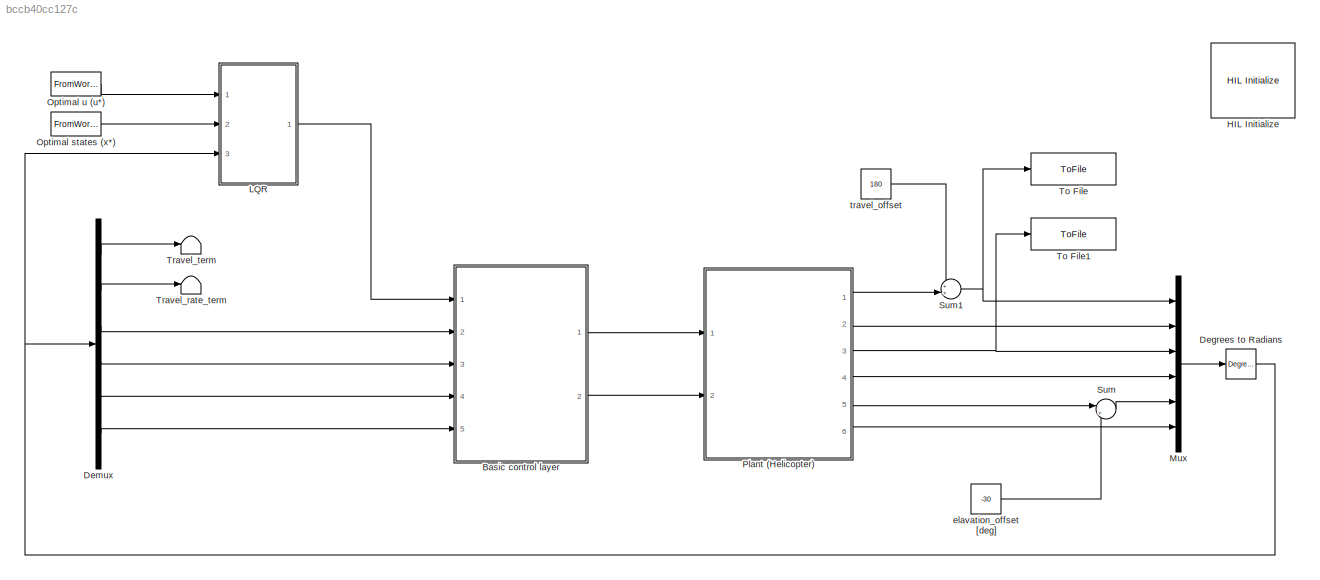
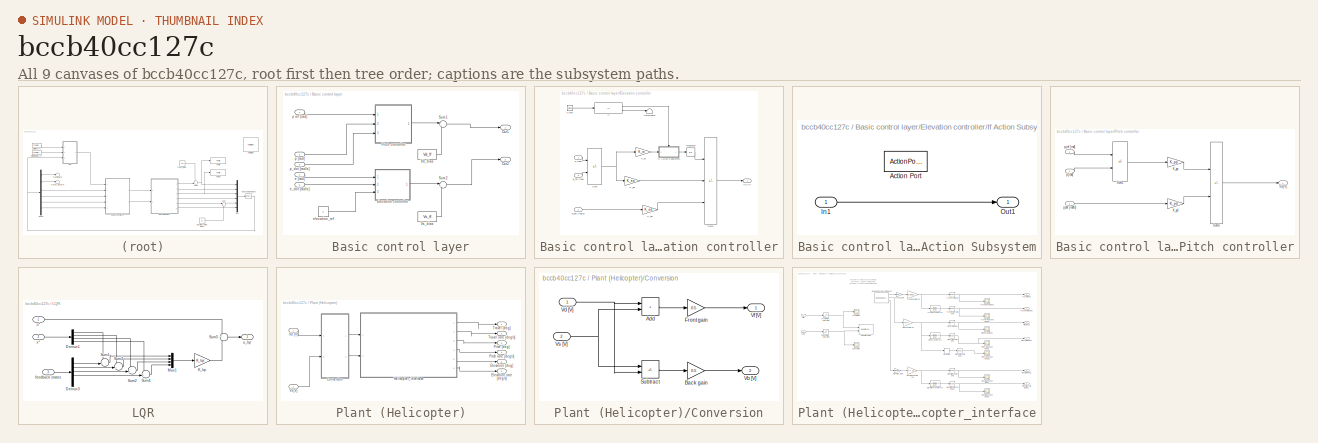
[diagram: thumbnail index - all 9 canvases of the model, root first then tree order]
MODEL slx_bccb40cc127c
KIND model
CONFIG AbsTol = auto
CONFIG EnableMultiTasking = on
CONFIG FixedStep = 0.002
CONFIG MaxStep = auto
CONFIG MinStep = auto
CONFIG PostLoadFcn = qc_set_target_type(getConfigSet(bdroot, 'QUARC Default Target Configuration'));
CONFIG RelTol = 1e-3
CONFIG SampleTimeConstraint = Unconstrained
CONFIG SolverName = ode1
CONFIG StartTime = 0.0
CONFIG StopTime = inf
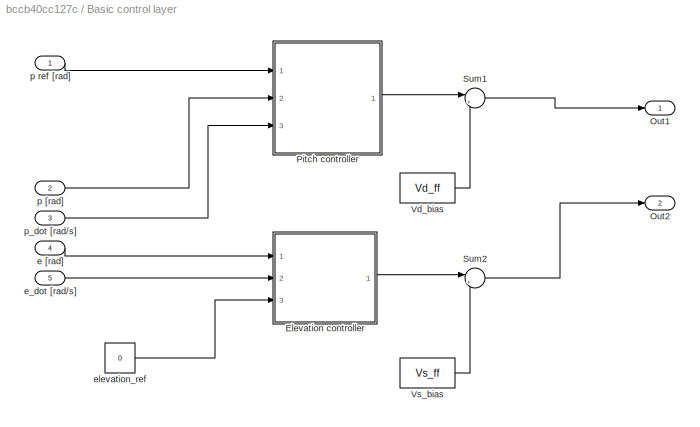
BLOCK [SubSystem] Basic control layer
  Ports = [5, 2]
  RequestExecContextInheritance = off
BLOCK [SubSystem] Basic control layer/Elevation controller
  Ports = [3, 1]
  RequestExecContextInheritance = off
BLOCK [Clock] Basic control layer/Elevation controller/Clock
BLOCK [If] Basic control layer/Elevation controller/If
  IfExpression = u1 >=2
  Ports = [1, 2]
BLOCK [SubSystem] Basic control layer/Elevation controller/If Action Subsystem
  Ports = [1, 1, 0, 0, 0, 0, 0, 1]
  RequestExecContextInheritance = off
  TreatAsAtomicUnit = on
BLOCK [ActionPort] Basic control layer/Elevation controller/If Action Subsystem/Action Port
  ActionPortLabel = if(u1 >=2)
BLOCK [Inport] Basic control layer/Elevation controller/If Action Subsystem/In1
BLOCK [Outport] Basic control layer/Elevation controller/If Action Subsystem/Out1
BLOCK [Integrator] Basic control layer/Elevation controller/Integrator
  LimitOutput = on
  Ports = [1, 1]
BLOCK [Gain] Basic control layer/Elevation controller/K_ed
  Gain = K_ed
  OutDataTypeStr = Inherit: Same as input
  ParamDataTypeStr = Inherit: Same as input
  SaturateOnIntegerOverflow = on
BLOCK [Gain] Basic control layer/Elevation controller/K_ei
  Gain = K_ei
  OutDataTypeStr = Inherit: Same as input
  ParamDataTypeStr = Inherit: Same as input
  SaturateOnIntegerOverflow = on
BLOCK [Gain] Basic control layer/Elevation controller/K_ep
  Gain = K_ep
  OutDataTypeStr = Inherit: Same as input
  ParamDataTypeStr = Inherit: Same as input
  SaturateOnIntegerOverflow = on
BLOCK [Sum] Basic control layer/Elevation controller/Sum
  IconShape = rectangular
  InputSameDT = on
  Inputs = -+
  OutDataTypeStr = Inherit: Same as first input
  Ports = [2, 1]
  SaturateOnIntegerOverflow = on
BLOCK [Sum] Basic control layer/Elevation controller/Sum1
  IconShape = rectangular
  InputSameDT = on
  Inputs = ++-
  OutDataTypeStr = Inherit: Same as first input
  Ports = [3, 1]
  SaturateOnIntegerOverflow = on
BLOCK [Terminator] Basic control layer/Elevation controller/Terminator
BLOCK [Outport] Basic control layer/Elevation controller/Vs [V]
  InitialOutput = 0
BLOCK [Inport] Basic control layer/Elevation controller/e [rad]
BLOCK [Inport] Basic control layer/Elevation controller/e_dot [rad//s]
  Port = 2
BLOCK [Inport] Basic control layer/Elevation controller/e_ref [rad]
  Port = 3
BLOCK [Outport] Basic control layer/Out1
BLOCK [Outport] Basic control layer/Out2
  Port = 2
BLOCK [SubSystem] Basic control layer/Pitch controller
  Ports = [3, 1]
  RequestExecContextInheritance = off
BLOCK [Gain] Basic control layer/Pitch controller/K_pd
  Gain = K_pd
  OutDataTypeStr = Inherit: Same as input
  ParamDataTypeStr = Inherit: Same as input
  SaturateOnIntegerOverflow = on
BLOCK [Gain] Basic control layer/Pitch controller/K_pp
  Gain = K_pp
  OutDataTypeStr = Inherit: Same as input
  ParamDataTypeStr = Inherit: Same as input
  SaturateOnIntegerOverflow = on
BLOCK [Sum] Basic control layer/Pitch controller/Sum2
  IconShape = rectangular
  InputSameDT = on
  Inputs = +-
  OutDataTypeStr = Inherit: Same as first input
  Ports = [2, 1]
  SaturateOnIntegerOverflow = on
BLOCK [Sum] Basic control layer/Pitch controller/Sum3
  IconShape = rectangular
  InputSameDT = on
  Inputs = +-
  OutDataTypeStr = Inherit: Same as first input
  Ports = [2, 1]
  SaturateOnIntegerOverflow = on
BLOCK [Outport] Basic control layer/Pitch controller/Vd [V]
  InitialOutput = 0
BLOCK [Inport] Basic control layer/Pitch controller/p [rad]
  Port = 2
BLOCK [Inport] Basic control layer/Pitch controller/p_dot [rad//s]
  Port = 3
BLOCK [Inport] Basic control layer/Pitch controller/p_ref [rad]
BLOCK [Sum] Basic control layer/Sum1
  Inputs = |++
  Ports = [2, 1]
BLOCK [Sum] Basic control layer/Sum2
  Inputs = |++
  Ports = [2, 1]
BLOCK [Constant] Basic control layer/Vd_bias
  Value = Vd_ff
BLOCK [Constant] Basic control layer/Vs_bias
  Value = Vs_ff
BLOCK [Inport] Basic control layer/e [rad]
  Port = 4
BLOCK [Inport] Basic control layer/e_dot [rad//s]
  Port = 5
BLOCK [Constant] Basic control layer/elevation_ref
  Value = 0
BLOCK [Inport] Basic control layer/p [rad]
  Port = 2
BLOCK [Inport] Basic control layer/p ref [rad]
BLOCK [Inport] Basic control layer/p_dot [rad//s]
  Port = 3
BLOCK [Reference] Degrees to Radians  REF=simulink_extras/Transformations/Degrees to
Radians
  Ports = [1, 1]
  SourceBlock = simulink_extras/Transformations/Degrees to\nRadians
  SourceProductBaseCode = SL
  SourceType = DegreesToRadians
BLOCK [Demux] Demux
  Outputs = 6
  Ports = [1, 6]
BLOCK [Reference] HIL Initialize  REF=quarc_library/Data Acquisition/Generic/Configuration/HIL Initialize
  AttributesFormatString = %<object_name> (%<board_type>-%<board_number>)
  Ports = []
  Priority = -99
  SourceBlock = quarc_library/Data Acquisition/Generic/Configuration/HIL Initialize
  SourceProductName = QUARC Targets
  SourceType = HIL Initialize
  UserDataPersistent = on
BLOCK [SubSystem] LQR
  Ports = [3, 1]
  RequestExecContextInheritance = off
BLOCK [Demux] LQR/Demux1
  Ports = [1, 4]
BLOCK [Demux] LQR/Demux3
  Outputs = 6
  Ports = [1, 6]
BLOCK [Gain] LQR/K_lqr
  Gain = K_lqr
  Multiplication = Matrix(K*u)
BLOCK [Mux] LQR/Mux1
  DisplayOption = bar
  Ports = [4, 1]
BLOCK [Sum] LQR/Sum1
  Inputs = -+|
  Ports = [2, 1]
BLOCK [Sum] LQR/Sum2
  Inputs = -+|
  Ports = [2, 1]
BLOCK [Sum] LQR/Sum3
  Inputs = -+|
  Ports = [2, 1]
BLOCK [Sum] LQR/Sum4
  Inputs = -+|
  Ports = [2, 1]
BLOCK [Sum] LQR/Sum5
  Inputs = +-
  Ports = [2, 1]
BLOCK [Inport] LQR/feedback states
  Port = 3
BLOCK [Inport] LQR/u*
BLOCK [Outport] LQR/u_lqr
BLOCK [Inport] LQR/x*
  Port = 2
BLOCK [Mux] Mux
  DisplayOption = bar
  Inputs = 6
  Ports = [6, 1]
BLOCK [FromWorkspace] Optimal states (x*)
  VariableName = [t',x_opt]
BLOCK [FromWorkspace] Optimal u (u*)
  VariableName = [t',u]
BLOCK [SubSystem] Plant (Helicopter)
  Ports = [2, 6]
  RequestExecContextInheritance = off
BLOCK [SubSystem] Plant (Helicopter)/Conversion
  Ports = [2, 2]
  RequestExecContextInheritance = off
BLOCK [Sum] Plant (Helicopter)/Conversion/Add
  IconShape = rectangular
  Ports = [2, 1]
BLOCK [Gain] Plant (Helicopter)/Conversion/Back gain
  Gain = 0.5
BLOCK [Gain] Plant (Helicopter)/Conversion/Front gain
  Gain = 0.5
BLOCK [Sum] Plant (Helicopter)/Conversion/Subtract
  IconShape = rectangular
  Inputs = +-
  Ports = [2, 1]
BLOCK [Outport] Plant (Helicopter)/Conversion/Vb [V]
  Port = 2
BLOCK [Inport] Plant (Helicopter)/Conversion/Vd [V]
BLOCK [Outport] Plant (Helicopter)/Conversion/Vf [V]
BLOCK [Inport] Plant (Helicopter)/Conversion/Vs [V]
  Port = 2
BLOCK [Outport] Plant (Helicopter)/Elevation [deg]
  Port = 5
BLOCK [Outport] Plant (Helicopter)/Elevation rate [deg//s]
  Port = 6
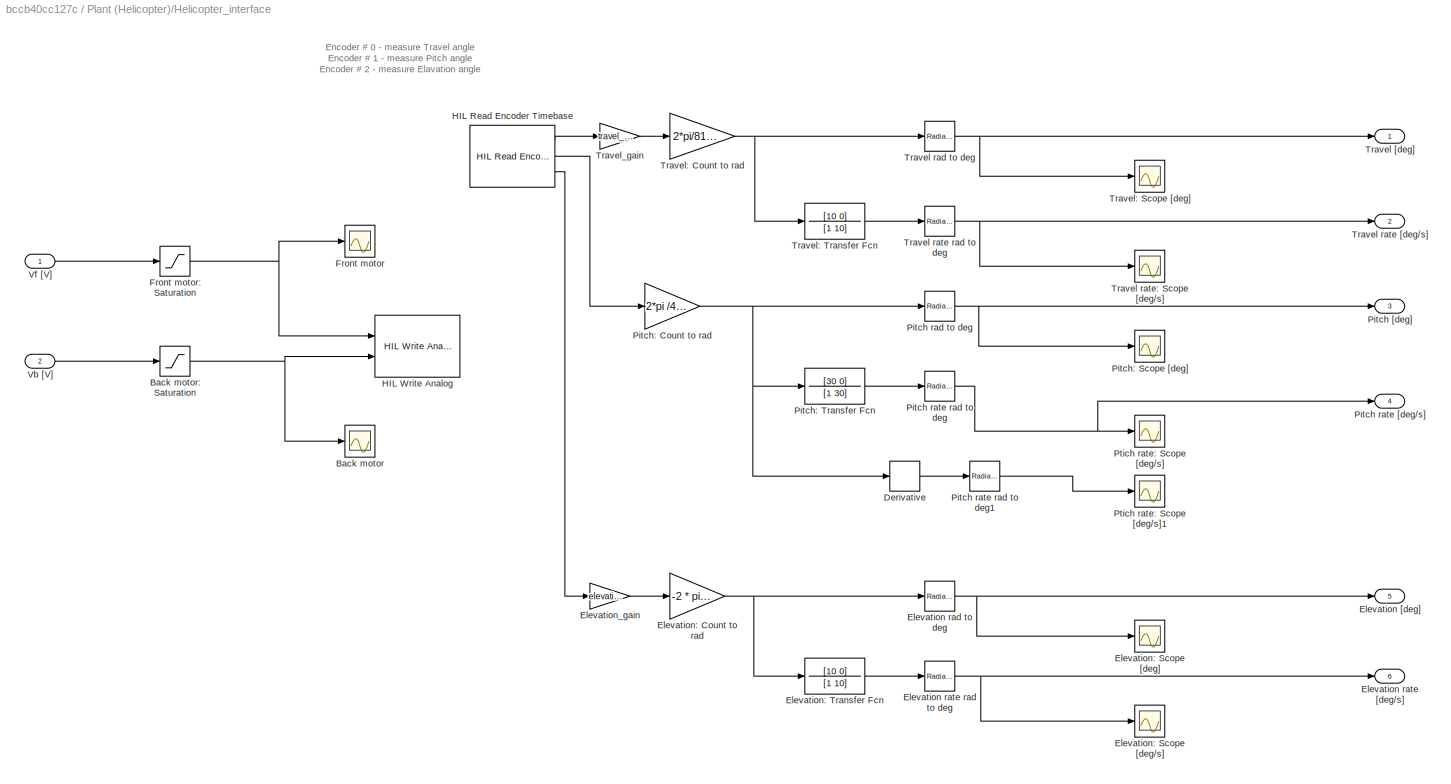
BLOCK [SubSystem] Plant (Helicopter)/Helicopter_interface
  Ports = [2, 6]
  RequestExecContextInheritance = off
BLOCK [Scope] Plant (Helicopter)/Helicopter_interface/Back motor
  Floating = off
  NumInputPorts = 1
  Ports = [1]
  ScopeSpecificationString = C++SS(StrPVP('Location','[1414, 470, 1738, 709]'),StrPVP('Open','off'),MxPVP('AxesTitles',54,'struct(''axes1'',''%<SignalLabel>'')'),MxPVP('ScopeGraphics',57,'struct(''FigureColor'',''[0.5 0.5 0.5]'',''AxesColor'',''[0 0 0]'',''AxesTickColor'',''[1 1 1]'',''LineColors'',''[1 1 0;1 0 1;0 1 1;1 0 0;0 1 0;0 0 1]'',''LineStyles'',''-|-|-|-|-|-'',''LineWidths'',''[0.5 0.5 0.5 0.5 0.5 0.5]'',''MarkerSty...<+319ch>
BLOCK [Saturate] Plant (Helicopter)/Helicopter_interface/Back motor: Saturation
  LowerLimit = -5
  UpperLimit = 5
BLOCK [Derivative] Plant (Helicopter)/Helicopter_interface/Derivative
BLOCK [Outport] Plant (Helicopter)/Helicopter_interface/Elevation [deg]
  Port = 5
BLOCK [Reference] Plant (Helicopter)/Helicopter_interface/Elevation rad to deg  REF=simulink_extras/Transformations/Radians
to Degrees
  Ports = [1, 1]
  SourceBlock = simulink_extras/Transformations/Radians\nto Degrees
  SourceProductBaseCode = SL
  SourceType = RadiansToDegrees
BLOCK [Outport] Plant (Helicopter)/Helicopter_interface/Elevation rate [deg//s]
  Port = 6
BLOCK [Reference] Plant (Helicopter)/Helicopter_interface/Elevation rate rad to deg  REF=simulink_extras/Transformations/Radians
to Degrees
  Ports = [1, 1]
  SourceBlock = simulink_extras/Transformations/Radians\nto Degrees
  SourceProductBaseCode = SL
  SourceType = RadiansToDegrees
BLOCK [Gain] Plant (Helicopter)/Helicopter_interface/Elevation: Count to rad
  Gain = -2 * pi /4096
BLOCK [Scope] Plant (Helicopter)/Helicopter_interface/Elevation: Scope [deg//s]
  Floating = off
  NumInputPorts = 1
  Ports = [1]
  ScopeSpecificationString = C++SS(StrPVP('Location','[929, 229, 1697, 870]'),StrPVP('Open','off'),MxPVP('AxesTitles',54,'struct(''axes1'',''%<SignalLabel>'')'),MxPVP('ScopeGraphics',57,'struct(''FigureColor'',''[0.5 0.5 0.5]'',''AxesColor'',''[0 0 0]'',''AxesTickColor'',''[1 1 1]'',''LineColors'',''[1 1 0;1 0 1;0 1 1;1 0 0;0 1 0;0 0 1]'',''LineStyles'',''-|-|-|-|-|-'',''LineWidths'',''[0.5 0.5 0.5 0.5 0.5 0.5]'',''MarkerStyl...<+314ch>
BLOCK [Scope] Plant (Helicopter)/Helicopter_interface/Elevation: Scope [deg]
  Floating = off
  NumInputPorts = 1
  Ports = [1]
  ScopeSpecificationString = C++SS(StrPVP('Location','[751, 178, 1705, 870]'),StrPVP('Open','off'),MxPVP('AxesTitles',54,'struct(''axes1'',''%<SignalLabel>'')'),MxPVP('ScopeGraphics',57,'struct(''FigureColor'',''[0.5 0.5 0.5]'',''AxesColor'',''[0 0 0]'',''AxesTickColor'',''[1 1 1]'',''LineColors'',''[1 1 0;1 0 1;0 1 1;1 0 0;0 1 0;0 0 1]'',''LineStyles'',''-|-|-|-|-|-'',''LineWidths'',''[0.5 0.5 0.5 0.5 0.5 0.5]'',''MarkerStyl...<+313ch>
BLOCK [TransferFcn] Plant (Helicopter)/Helicopter_interface/Elevation: Transfer Fcn
  Denominator = [1 10]
  Numerator = [10 0]
BLOCK [Gain] Plant (Helicopter)/Helicopter_interface/Elevation_gain
  Gain = elevation_gain
  NameLocation = top
BLOCK [Scope] Plant (Helicopter)/Helicopter_interface/Front motor
  Floating = off
  NumInputPorts = 1
  Ports = [1]
  ScopeSpecificationString = C++SS(StrPVP('Location','[1340, 218, 1666, 457]'),StrPVP('Open','off'),MxPVP('AxesTitles',54,'struct(''axes1'',''%<SignalLabel>'')'),MxPVP('ScopeGraphics',57,'struct(''FigureColor'',''[0.5 0.5 0.5]'',''AxesColor'',''[0 0 0]'',''AxesTickColor'',''[1 1 1]'',''LineColors'',''[1 1 0;1 0 1;0 1 1;1 0 0;0 1 0;0 0 1]'',''LineStyles'',''-|-|-|-|-|-'',''LineWidths'',''[0.5 0.5 0.5 0.5 0.5 0.5]'',''MarkerSty...<+287ch>
BLOCK [Saturate] Plant (Helicopter)/Helicopter_interface/Front motor: Saturation
  LowerLimit = -5
  UpperLimit = 5
BLOCK [Reference] Plant (Helicopter)/Helicopter_interface/HIL Read Encoder Timebase  REF=quarc_library/Data Acquisition/Generic/Timebases/HIL Read Encoder
Timebase
  AttributesFormatString = (%<object_name>)
  Ports = [0, 3]
  SourceBlock = quarc_library/Data Acquisition/Generic/Timebases/HIL Read Encoder\nTimebase
  SourceProductName = QUARC Targets
  SourceType = HIL Read Encoder Timebase
  UserDataPersistent = on
BLOCK [Reference] Plant (Helicopter)/Helicopter_interface/HIL Write Analog  REF=quarc_library/Data Acquisition/Generic/Immediate I//O/HIL Write Analog
  AttributesFormatString = (%<object_name>)
  Ports = [2]
  SourceBlock = quarc_library/Data Acquisition/Generic/Immediate I//O/HIL Write Analog
  SourceProductName = QUARC Targets
  SourceType = HIL Write Analog
  UserDataPersistent = on
BLOCK [Outport] Plant (Helicopter)/Helicopter_interface/Pitch [deg]
  Port = 3
BLOCK [Reference] Plant (Helicopter)/Helicopter_interface/Pitch rad to deg  REF=simulink_extras/Transformations/Radians
to Degrees
  Ports = [1, 1]
  SourceBlock = simulink_extras/Transformations/Radians\nto Degrees
  SourceProductBaseCode = SL
  SourceType = RadiansToDegrees
BLOCK [Outport] Plant (Helicopter)/Helicopter_interface/Pitch rate [deg//s]
  Port = 4
BLOCK [Reference] Plant (Helicopter)/Helicopter_interface/Pitch rate rad to deg  REF=simulink_extras/Transformations/Radians
to Degrees
  Ports = [1, 1]
  SourceBlock = simulink_extras/Transformations/Radians\nto Degrees
  SourceProductBaseCode = SL
  SourceType = RadiansToDegrees
BLOCK [Reference] Plant (Helicopter)/Helicopter_interface/Pitch rate rad to deg1  REF=simulink_extras/Transformations/Radians
to Degrees
  Ports = [1, 1]
  SourceBlock = simulink_extras/Transformations/Radians\nto Degrees
  SourceProductBaseCode = SL
  SourceType = RadiansToDegrees
BLOCK [Gain] Plant (Helicopter)/Helicopter_interface/Pitch: Count to rad
  Gain = 2*pi /4096
  NameLocation = top
BLOCK [Scope] Plant (Helicopter)/Helicopter_interface/Pitch: Scope [deg]
  Floating = off
  NumInputPorts = 1
  Ports = [1]
  ScopeSpecificationString = C++SS(StrPVP('Location','[1064, 516, 1642, 962]'),StrPVP('Open','off'),MxPVP('AxesTitles',54,'struct(''axes1'',''%<SignalLabel>'')'),MxPVP('ScopeGraphics',57,'struct(''FigureColor'',''[0.5 0.5 0.5]'',''AxesColor'',''[0 0 0]'',''AxesTickColor'',''[1 1 1]'',''LineColors'',''[1 1 0;1 0 1;0 1 1;1 0 0;0 1 0;0 0 1]'',''LineStyles'',''-|-|-|-|-|-'',''LineWidths'',''[0.5 0.5 0.5 0.5 0.5 0.5]'',''MarkerSty...<+315ch>
BLOCK [TransferFcn] Plant (Helicopter)/Helicopter_interface/Pitch: Transfer Fcn
  Denominator = [1 30]
  Numerator = [30 0]
BLOCK [Scope] Plant (Helicopter)/Helicopter_interface/Ptich rate: Scope [deg//s]
  Floating = off
  NumInputPorts = 1
  Ports = [1]
  ScopeSpecificationString = C++SS(StrPVP('Location','[1033, 217, 1561, 703]'),StrPVP('Open','off'),MxPVP('AxesTitles',54,'struct(''axes1'',''%<SignalLabel>'')'),MxPVP('ScopeGraphics',57,'struct(''FigureColor'',''[0.5 0.5 0.5]'',''AxesColor'',''[0 0 0]'',''AxesTickColor'',''[1 1 1]'',''LineColors'',''[1 1 0;1 0 1;0 1 1;1 0 0;0 1 0;0 0 1]'',''LineStyles'',''-|-|-|-|-|-'',''LineWidths'',''[0.5 0.5 0.5 0.5 0.5 0.5]'',''MarkerSty...<+315ch>
BLOCK [Scope] Plant (Helicopter)/Helicopter_interface/Ptich rate: Scope [deg//s]1
  Floating = off
  NumInputPorts = 1
  Ports = [1]
  ScopeSpecificationString = C++SS(StrPVP('Location','[708, 654, 1549, 1288]'),StrPVP('Open','off'),MxPVP('AxesTitles',54,'struct(''axes1'',''%<SignalLabel>'')'),MxPVP('ScopeGraphics',57,'struct(''FigureColor'',''[0.5 0.5 0.5]'',''AxesColor'',''[0 0 0]'',''AxesTickColor'',''[1 1 1]'',''LineColors'',''[1 1 0;1 0 1;0 1 1;1 0 0;0 1 0;0 0 1]'',''LineStyles'',''-|-|-|-|-|-'',''LineWidths'',''[0.5 0.5 0.5 0.5 0.5 0.5]'',''MarkerSty...<+316ch>
BLOCK [Outport] Plant (Helicopter)/Helicopter_interface/Travel [deg]
BLOCK [Reference] Plant (Helicopter)/Helicopter_interface/Travel rad to deg  REF=simulink_extras/Transformations/Radians
to Degrees
  Ports = [1, 1]
  SourceBlock = simulink_extras/Transformations/Radians\nto Degrees
  SourceProductBaseCode = SL
  SourceType = RadiansToDegrees
BLOCK [Reference] Plant (Helicopter)/Helicopter_interface/Travel rate  rad to deg  REF=simulink_extras/Transformations/Radians
to Degrees
  Ports = [1, 1]
  SourceBlock = simulink_extras/Transformations/Radians\nto Degrees
  SourceProductBaseCode = SL
  SourceType = RadiansToDegrees
BLOCK [Outport] Plant (Helicopter)/Helicopter_interface/Travel rate [deg//s]
  Port = 2
BLOCK [Scope] Plant (Helicopter)/Helicopter_interface/Travel rate: Scope [deg//s]
  Floating = off
  NumInputPorts = 1
  Ports = [1]
  ScopeSpecificationString = C++SS(StrPVP('Location','[1008, 309, 1786, 904]'),StrPVP('Open','off'),MxPVP('AxesTitles',54,'struct(''axes1'',''%<SignalLabel>'')'),MxPVP('ScopeGraphics',57,'struct(''FigureColor'',''[0.5 0.5 0.5]'',''AxesColor'',''[0 0 0]'',''AxesTickColor'',''[1 1 1]'',''LineColors'',''[1 1 0;1 0 1;0 1 1;1 0 0;0 1 0;0 0 1]'',''LineStyles'',''-|-|-|-|-|-'',''LineWidths'',''[0.5 0.5 0.5 0.5 0.5 0.5]'',''MarkerSty...<+316ch>
BLOCK [Gain] Plant (Helicopter)/Helicopter_interface/Travel: Count to rad
  Gain = 2*pi/8192
  NameLocation = top
BLOCK [Scope] Plant (Helicopter)/Helicopter_interface/Travel: Scope [deg]
  Floating = off
  NumInputPorts = 1
  Ports = [1]
  ScopeSpecificationString = C++SS(StrPVP('Location','[1236, 673, 1560, 912]'),StrPVP('Open','off'),MxPVP('AxesTitles',54,'struct(''axes1'',''%<SignalLabel>'')'),MxPVP('ScopeGraphics',57,'struct(''FigureColor'',''[0.5 0.5 0.5]'',''AxesColor'',''[0 0 0]'',''AxesTickColor'',''[1 1 1]'',''LineColors'',''[1 1 0;1 0 1;0 1 1;1 0 0;0 1 0;0 0 1]'',''LineStyles'',''-|-|-|-|-|-'',''LineWidths'',''[0.5 0.5 0.5 0.5 0.5 0.5]'',''MarkerSty...<+313ch>
BLOCK [TransferFcn] Plant (Helicopter)/Helicopter_interface/Travel: Transfer Fcn
  Denominator = [1 10]
  Numerator = [10 0]
BLOCK [Gain] Plant (Helicopter)/Helicopter_interface/Travel_gain
  Gain = travel_gain
  NameLocation = top
BLOCK [Inport] Plant (Helicopter)/Helicopter_interface/Vb [V]
  Port = 2
BLOCK [Inport] Plant (Helicopter)/Helicopter_interface/Vf [V]
BLOCK [Outport] Plant (Helicopter)/Pitch [deg]
  Port = 3
BLOCK [Outport] Plant (Helicopter)/Pitch rate [deg//s]
  Port = 4
BLOCK [Outport] Plant (Helicopter)/Travel [deg]
BLOCK [Outport] Plant (Helicopter)/Travel rate [deg//s]
  Port = 2
BLOCK [Inport] Plant (Helicopter)/Vd [V]
BLOCK [Inport] Plant (Helicopter)/Vs [V]
  Port = 2
BLOCK [Sum] Sum
  Inputs = |++
  Ports = [2, 1]
BLOCK [Sum] Sum1
  Inputs = ++|
  Ports = [2, 1]
BLOCK [ToFile] To File
  Filename = travel_10_3.mat
  Ports = [1]
BLOCK [ToFile] To File1
  Filename = pitch_10_3.mat
  Ports = [1]
BLOCK [Terminator] Travel_rate_term
BLOCK [Terminator] Travel_term
BLOCK [Constant] elavation_offset [deg]
  Value = -30
BLOCK [Constant] travel_offset
  Value = 180
ANNOTATION Plant (Helicopter)/Helicopter_interface: Encoder # 0 - measure Travel angle Encoder # 1 - measure Pitch angle Encoder # 2 - measure Elavation angle
LINE Basic control layer/Elevation controller/Clock:1 -> Basic control layer/Elevation controller/If:1
LINE Basic control layer/Elevation controller/If Action Subsystem/In1:1 -> Basic control layer/Elevation controller/If Action Subsystem/Out1:1
LINE Basic control layer/Elevation controller/If Action Subsystem:1 -> Basic control layer/Elevation controller/Integrator:1
LINE Basic control layer/Elevation controller/If:1 -> Basic control layer/Elevation controller/If Action Subsystem:ifaction
LINE Basic control layer/Elevation controller/If:2 -> Basic control layer/Elevation controller/Terminator:1
LINE Basic control layer/Elevation controller/Integrator:1 -> Basic control layer/Elevation controller/Sum1:1
LINE Basic control layer/Elevation controller/K_ed:1 -> Basic control layer/Elevation controller/Sum1:3
LINE Basic control layer/Elevation controller/K_ei:1 -> Basic control layer/Elevation controller/If Action Subsystem:1
LINE Basic control layer/Elevation controller/K_ep:1 -> Basic control layer/Elevation controller/Sum1:2
LINE Basic control layer/Elevation controller/Sum1:1 -> Basic control layer/Elevation controller/Vs [V]:1
NET Basic control layer/Elevation controller/Sum:1 -> Basic control layer/Elevation controller/K_ei:1, Basic control layer/Elevation controller/K_ep:1
LINE Basic control layer/Elevation controller/e [rad]:1 -> Basic control layer/Elevation controller/Sum:1
LINE Basic control layer/Elevation controller/e_dot [rad//s]:1 -> Basic control layer/Elevation controller/K_ed:1
LINE Basic control layer/Elevation controller/e_ref [rad]:1 -> Basic control layer/Elevation controller/Sum:2
LINE Basic control layer/Elevation controller:1 -> Basic control layer/Sum2:1
LINE Basic control layer/Pitch controller/K_pd:1 -> Basic control layer/Pitch controller/Sum3:2
LINE Basic control layer/Pitch controller/K_pp:1 -> Basic control layer/Pitch controller/Sum3:1
LINE Basic control layer/Pitch controller/Sum2:1 -> Basic control layer/Pitch controller/K_pp:1
LINE Basic control layer/Pitch controller/Sum3:1 -> Basic control layer/Pitch controller/Vd [V]:1
LINE Basic control layer/Pitch controller/p [rad]:1 -> Basic control layer/Pitch controller/Sum2:2
LINE Basic control layer/Pitch controller/p_dot [rad//s]:1 -> Basic control layer/Pitch controller/K_pd:1
LINE Basic control layer/Pitch controller/p_ref [rad]:1 -> Basic control layer/Pitch controller/Sum2:1
LINE Basic control layer/Pitch controller:1 -> Basic control layer/Sum1:1
LINE Basic control layer/Sum1:1 -> Basic control layer/Out1:1
LINE Basic control layer/Sum2:1 -> Basic control layer/Out2:1
LINE Basic control layer/Vd_bias:1 -> Basic control layer/Sum1:2
LINE Basic control layer/Vs_bias:1 -> Basic control layer/Sum2:2
LINE Basic control layer/e [rad]:1 -> Basic control layer/Elevation controller:1
LINE Basic control layer/e_dot [rad//s]:1 -> Basic control layer/Elevation controller:2
LINE Basic control layer/elevation_ref:1 -> Basic control layer/Elevation controller:3
LINE Basic control layer/p [rad]:1 -> Basic control layer/Pitch controller:2
LINE Basic control layer/p ref [rad]:1 -> Basic control layer/Pitch controller:1
LINE Basic control layer/p_dot [rad//s]:1 -> Basic control layer/Pitch controller:3
LINE Basic control layer:1 -> Plant (Helicopter):1
LINE Basic control layer:2 -> Plant (Helicopter):2
NET Degrees to Radians:1 -> Demux:1, LQR:3
LINE Demux:1 -> Travel_term:1
LINE Demux:2 -> Travel_rate_term:1
LINE Demux:3 -> Basic control layer:2
LINE Demux:4 -> Basic control layer:3
LINE Demux:5 -> Basic control layer:4
LINE Demux:6 -> Basic control layer:5
LINE LQR/Demux1:1 -> LQR/Sum1:1
LINE LQR/Demux1:2 -> LQR/Sum3:1
LINE LQR/Demux1:3 -> LQR/Sum2:1
LINE LQR/Demux1:4 -> LQR/Sum4:1
LINE LQR/Demux3:1 -> LQR/Sum1:2
LINE LQR/Demux3:2 -> LQR/Sum3:2
LINE LQR/Demux3:3 -> LQR/Sum2:2
LINE LQR/Demux3:4 -> LQR/Sum4:2
LINE LQR/K_lqr:1 -> LQR/Sum5:2
LINE LQR/Mux1:1 -> LQR/K_lqr:1
LINE LQR/Sum1:1 -> LQR/Mux1:1
LINE LQR/Sum2:1 -> LQR/Mux1:3
LINE LQR/Sum3:1 -> LQR/Mux1:2
LINE LQR/Sum4:1 -> LQR/Mux1:4
LINE LQR/Sum5:1 -> LQR/u_lqr:1
LINE LQR/feedback states:1 -> LQR/Demux3:1
LINE LQR/u*:1 -> LQR/Sum5:1
LINE LQR/x*:1 -> LQR/Demux1:1
LINE LQR:1 -> Basic control layer:1
LINE Mux:1 -> Degrees to Radians:1
LINE Optimal states (x*):1 -> LQR:2
LINE Optimal u (u*):1 -> LQR:1
LINE Plant (Helicopter)/Conversion/Add:1 -> Plant (Helicopter)/Conversion/Front gain:1
LINE Plant (Helicopter)/Conversion/Back gain:1 -> Plant (Helicopter)/Conversion/Vb [V]:1
LINE Plant (Helicopter)/Conversion/Front gain:1 -> Plant (Helicopter)/Conversion/Vf [V]:1
LINE Plant (Helicopter)/Conversion/Subtract:1 -> Plant (Helicopter)/Conversion/Back gain:1
NET Plant (Helicopter)/Conversion/Vd [V]:1 -> Plant (Helicopter)/Conversion/Add:1, Plant (Helicopter)/Conversion/Subtract:2
NET Plant (Helicopter)/Conversion/Vs [V]:1 -> Plant (Helicopter)/Conversion/Add:2, Plant (Helicopter)/Conversion/Subtract:1
LINE Plant (Helicopter)/Conversion:1 -> Plant (Helicopter)/Helicopter_interface:1
LINE Plant (Helicopter)/Conversion:2 -> Plant (Helicopter)/Helicopter_interface:2
NET Plant (Helicopter)/Helicopter_interface/Back motor: Saturation:1 -> Plant (Helicopter)/Helicopter_interface/Back motor:1, Plant (Helicopter)/Helicopter_interface/HIL Write Analog:2
LINE Plant (Helicopter)/Helicopter_interface/Derivative:1 -> Plant (Helicopter)/Helicopter_interface/Pitch rate rad to deg1:1
NET Plant (Helicopter)/Helicopter_interface/Elevation rad to deg:1 -> Plant (Helicopter)/Helicopter_interface/Elevation [deg]:1, Plant (Helicopter)/Helicopter_interface/Elevation: Scope [deg]:1
NET Plant (Helicopter)/Helicopter_interface/Elevation rate rad to deg:1 -> Plant (Helicopter)/Helicopter_interface/Elevation rate [deg//s]:1, Plant (Helicopter)/Helicopter_interface/Elevation: Scope [deg//s]:1
NET Plant (Helicopter)/Helicopter_interface/Elevation: Count to rad:1 -> Plant (Helicopter)/Helicopter_interface/Elevation rad to deg:1, Plant (Helicopter)/Helicopter_interface/Elevation: Transfer Fcn:1
LINE Plant (Helicopter)/Helicopter_interface/Elevation: Transfer Fcn:1 -> Plant (Helicopter)/Helicopter_interface/Elevation rate rad to deg:1
LINE Plant (Helicopter)/Helicopter_interface/Elevation_gain:1 -> Plant (Helicopter)/Helicopter_interface/Elevation: Count to rad:1
NET Plant (Helicopter)/Helicopter_interface/Front motor: Saturation:1 -> Plant (Helicopter)/Helicopter_interface/Front motor:1, Plant (Helicopter)/Helicopter_interface/HIL Write Analog:1
LINE Plant (Helicopter)/Helicopter_interface/HIL Read Encoder Timebase:1 -> Plant (Helicopter)/Helicopter_interface/Travel_gain:1
LINE Plant (Helicopter)/Helicopter_interface/HIL Read Encoder Timebase:2 -> Plant (Helicopter)/Helicopter_interface/Pitch: Count to rad:1
LINE Plant (Helicopter)/Helicopter_interface/HIL Read Encoder Timebase:3 -> Plant (Helicopter)/Helicopter_interface/Elevation_gain:1
NET Plant (Helicopter)/Helicopter_interface/Pitch rad to deg:1 -> Plant (Helicopter)/Helicopter_interface/Pitch [deg]:1, Plant (Helicopter)/Helicopter_interface/Pitch: Scope [deg]:1
LINE Plant (Helicopter)/Helicopter_interface/Pitch rate rad to deg1:1 -> Plant (Helicopter)/Helicopter_interface/Ptich rate: Scope [deg//s]1:1
NET Plant (Helicopter)/Helicopter_interface/Pitch rate rad to deg:1 -> Plant (Helicopter)/Helicopter_interface/Pitch rate [deg//s]:1, Plant (Helicopter)/Helicopter_interface/Ptich rate: Scope [deg//s]:1
NET Plant (Helicopter)/Helicopter_interface/Pitch: Count to rad:1 -> Plant (Helicopter)/Helicopter_interface/Derivative:1, Plant (Helicopter)/Helicopter_interface/Pitch rad to deg:1, Plant (Helicopter)/Helicopter_interface/Pitch: Transfer Fcn:1
LINE Plant (Helicopter)/Helicopter_interface/Pitch: Transfer Fcn:1 -> Plant (Helicopter)/Helicopter_interface/Pitch rate rad to deg:1
NET Plant (Helicopter)/Helicopter_interface/Travel rad to deg:1 -> Plant (Helicopter)/Helicopter_interface/Travel [deg]:1, Plant (Helicopter)/Helicopter_interface/Travel: Scope [deg]:1
NET Plant (Helicopter)/Helicopter_interface/Travel rate  rad to deg:1 -> Plant (Helicopter)/Helicopter_interface/Travel rate [deg//s]:1, Plant (Helicopter)/Helicopter_interface/Travel rate: Scope [deg//s]:1
NET Plant (Helicopter)/Helicopter_interface/Travel: Count to rad:1 -> Plant (Helicopter)/Helicopter_interface/Travel rad to deg:1, Plant (Helicopter)/Helicopter_interface/Travel: Transfer Fcn:1
LINE Plant (Helicopter)/Helicopter_interface/Travel: Transfer Fcn:1 -> Plant (Helicopter)/Helicopter_interface/Travel rate  rad to deg:1
LINE Plant (Helicopter)/Helicopter_interface/Travel_gain:1 -> Plant (Helicopter)/Helicopter_interface/Travel: Count to rad:1
LINE Plant (Helicopter)/Helicopter_interface/Vb [V]:1 -> Plant (Helicopter)/Helicopter_interface/Back motor: Saturation:1
LINE Plant (Helicopter)/Helicopter_interface/Vf [V]:1 -> Plant (Helicopter)/Helicopter_interface/Front motor: Saturation:1
LINE Plant (Helicopter)/Helicopter_interface:1 -> Plant (Helicopter)/Travel [deg]:1
LINE Plant (Helicopter)/Helicopter_interface:2 -> Plant (Helicopter)/Travel rate [deg//s]:1
LINE Plant (Helicopter)/Helicopter_interface:3 -> Plant (Helicopter)/Pitch [deg]:1
LINE Plant (Helicopter)/Helicopter_interface:4 -> Plant (Helicopter)/Pitch rate [deg//s]:1
LINE Plant (Helicopter)/Helicopter_interface:5 -> Plant (Helicopter)/Elevation [deg]:1
LINE Plant (Helicopter)/Helicopter_interface:6 -> Plant (Helicopter)/Elevation rate [deg//s]:1
LINE Plant (Helicopter)/Vd [V]:1 -> Plant (Helicopter)/Conversion:1
LINE Plant (Helicopter)/Vs [V]:1 -> Plant (Helicopter)/Conversion:2
LINE Plant (Helicopter):1 -> Sum1:2
LINE Plant (Helicopter):2 -> Mux:2
NET Plant (Helicopter):3 -> Mux:3, To File1:1
LINE Plant (Helicopter):4 -> Mux:4
LINE Plant (Helicopter):5 -> Sum:1
LINE Plant (Helicopter):6 -> Mux:6
NET Sum1:1 -> Mux:1, To File:1
LINE Sum:1 -> Mux:5
LINE elavation_offset [deg]:1 -> Sum:2
LINE travel_offset:1 -> Sum1:1
note: NET lines group one-source signal fan-out (src -> all destinations, sorted); 1:1 wires keep LINE
